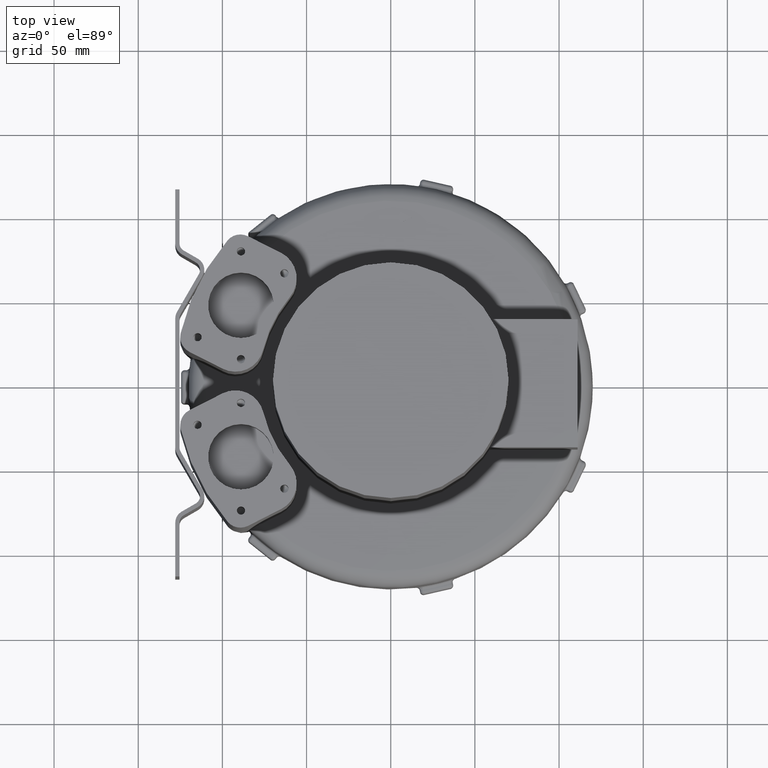
[diagram: clean part render]
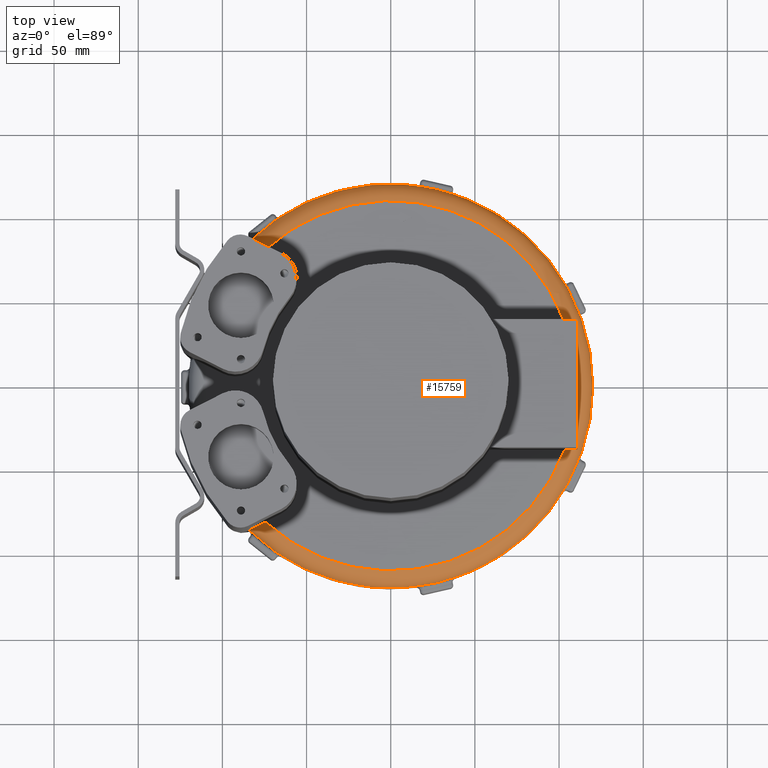
[diagram: same view with one face highlighted and labeled with its STEP entity id]
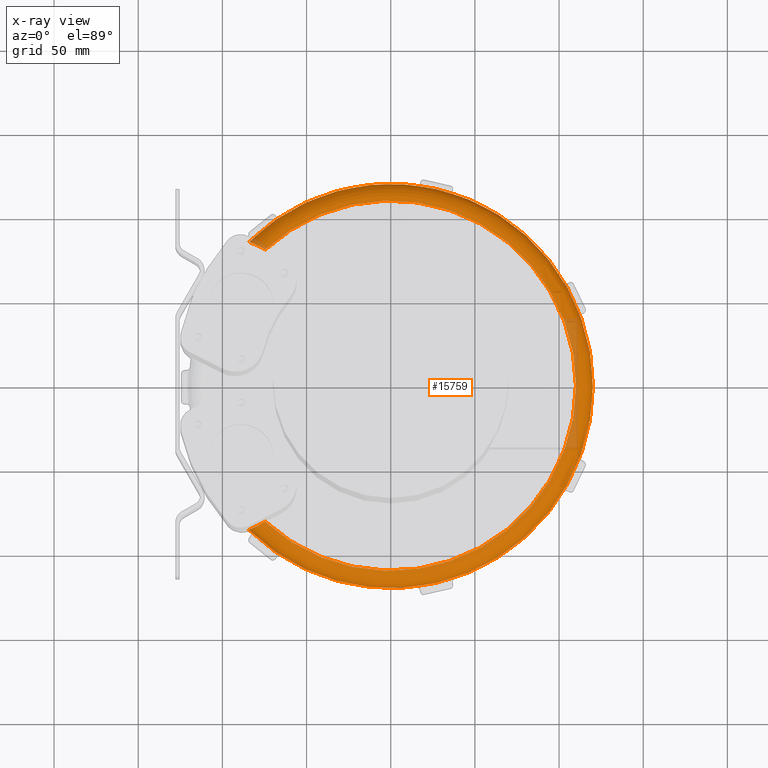
[diagram: x-ray of the same camera — body ghosted, the highlighted face saturated]
A machine part, top view. The second image highlights one B-rep face of the part: STEP entity #15759.
The next image is the same camera in x-ray: the body ghosted, the highlighted face saturated — about 5% of this face is hidden behind the body in this view.
In plain terms, the highlighted toroidal blend (fillet) surface has major radius 110 mm and minor (blend) radius 10 mm.
Its self-contained STEP definition (entity closure, byte-faithful):
#1989=CARTESIAN_POINT('',(-84.056348621555884,85.64187209777387,-12.0));
#1990=VERTEX_POINT('',#1989);
#1997=CARTESIAN_POINT('',(-84.056348621555884,-85.64187209777387,-12.0));
#1998=VERTEX_POINT('',#1997);
#1999=CARTESIAN_POINT('',(0.0,0.0,-12.0));
#2000=DIRECTION('',(0.0,0.0,1.0));
#2001=DIRECTION('',(0.0,-1.0,0.0));
#2002=AXIS2_PLACEMENT_3D('',#1999,#2000,#2001);
#2003=CIRCLE('',#2002,120.0);
#2004=EDGE_CURVE('',#1998,#1990,#2003,.T.);
#14742=CARTESIAN_POINT('',(-74.584446208058239,-80.852707956117754,-2.0));
#14743=VERTEX_POINT('',#14742);
#14744=CARTESIAN_POINT('',(-74.584446208058253,-80.852707956117769,-1.999999999999998));
#14745=CARTESIAN_POINT('',(-75.182824698426771,-81.155258878214212,-1.999999999999998));
#14746=CARTESIAN_POINT('',(-75.836788670192803,-81.485914818994758,-2.063004028082554));
#14747=CARTESIAN_POINT('',(-77.11930183458324,-82.134376531327007,-2.337062824542517));
#14748=CARTESIAN_POINT('',(-77.747827445269195,-82.452170379426661,-2.54825614375461));
#14749=CARTESIAN_POINT('',(-78.838940430527941,-83.003856720287828,-3.037546050059624));
#14750=CARTESIAN_POINT('',(-79.404046136288358,-83.289584324323997,-3.356594996681943));
#14751=CARTESIAN_POINT('',(-80.462437252034874,-83.824725899701434,-4.119126121453566));
#14752=CARTESIAN_POINT('',(-80.955614536185692,-84.074085200676592,-4.562796728977393));
#14753=CARTESIAN_POINT('',(-81.770012789992137,-84.485859598668611,-5.44508755913024));
#14754=CARTESIAN_POINT('',(-82.169117494998318,-84.687654112435794,-5.961583213250005));
#14755=CARTESIAN_POINT('',(-82.85937203757797,-85.03665921823449,-7.077956322778642));
#14756=CARTESIAN_POINT('',(-83.150379616443246,-85.183797881705658,-7.677944215057968));
#14757=CARTESIAN_POINT('',(-83.581223289768815,-85.401640188443309,-8.807806320031816));
#14758=CARTESIAN_POINT('',(-83.763424068693197,-85.493764177787114,-9.439857938737159));
#14759=CARTESIAN_POINT('',(-84.001019488340702,-85.613896693339214,-10.733073785955929));
#14760=CARTESIAN_POINT('',(-84.056348621555884,-85.64187209777387,-11.39425312554436));
#14761=CARTESIAN_POINT('',(-84.056348621555884,-85.64187209777387,-12.0));
#14762=B_SPLINE_CURVE_WITH_KNOTS('',3,(#14744,#14745,#14746,#14747,#14748,#14749,#14750,#14751,#14752,#14753,#14754,#14755,#14756,#14757,#14758,#14759,#14760,#14761),.UNSPECIFIED.,.F.,.U.,(4,2,2,2,2,2,2,2,4),(-1.527366417418427,-1.326211131537741,-1.125055845657053,-0.931133799875384,-0.737211754093715,-0.55032993938355,-0.363448124673385,-0.181724062336692,0.0),.UNSPECIFIED.);
#14763=EDGE_CURVE('',#14743,#1998,#14762,.T.);
#14830=CARTESIAN_POINT('',(-74.584446208058239,80.852707956117754,-2.0));
#14831=VERTEX_POINT('',#14830);
#14838=CARTESIAN_POINT('',(-84.056348621555884,85.64187209777387,-12.0));
#14839=CARTESIAN_POINT('',(-84.056348621555884,85.64187209777387,-11.394253125544358));
#14840=CARTESIAN_POINT('',(-84.001019488340702,85.613896693339214,-10.733073785955927));
#14841=CARTESIAN_POINT('',(-83.763424068693197,85.493764177787114,-9.439857938737152));
#14842=CARTESIAN_POINT('',(-83.581223289768786,85.401640188443309,-8.807806320031816));
#14843=CARTESIAN_POINT('',(-83.150379616443246,85.183797881705658,-7.677944215057968));
#14844=CARTESIAN_POINT('',(-82.85937203757797,85.03665921823449,-7.077956322778642));
#14845=CARTESIAN_POINT('',(-82.169117494998318,84.687654112435794,-5.961583213250005));
#14846=CARTESIAN_POINT('',(-81.770012789992137,84.485859598668611,-5.44508755913024));
#14847=CARTESIAN_POINT('',(-80.955614536185692,84.074085200676592,-4.562796728977392));
#14848=CARTESIAN_POINT('',(-80.462437252034874,83.824725899701434,-4.11912612145357));
#14849=CARTESIAN_POINT('',(-79.404046136288372,83.289584324323997,-3.356594996681951));
#14850=CARTESIAN_POINT('',(-78.838940430527941,83.003856720287828,-3.037546050059623));
#14851=CARTESIAN_POINT('',(-77.747827445269209,82.452170379426661,-2.54825614375461));
#14852=CARTESIAN_POINT('',(-77.119301834583226,82.134376531327007,-2.337062824542516));
#14853=CARTESIAN_POINT('',(-75.836788670192789,81.485914818994758,-2.063004028082554));
#14854=CARTESIAN_POINT('',(-75.182824698426757,81.155258878214212,-1.999999999999999));
#14855=CARTESIAN_POINT('',(-74.584446208058239,80.852707956117769,-1.999999999999999));
#14856=B_SPLINE_CURVE_WITH_KNOTS('',3,(#14838,#14839,#14840,#14841,#14842,#14843,#14844,#14845,#14846,#14847,#14848,#14849,#14850,#14851,#14852,#14853,#14854,#14855),.UNSPECIFIED.,.F.,.U.,(4,2,2,2,2,2,2,2,4),(0.0,0.181724062336693,0.363448124673385,0.55032993938355,0.737211754093715,0.931133799875384,1.125055845657053,1.32621113153774,1.527366417418427),.UNSPECIFIED.);
#14857=EDGE_CURVE('',#1990,#14831,#14856,.T.);
#15742=CARTESIAN_POINT('',(0.0,0.0,-12.0));
#15743=DIRECTION('',(0.0,0.0,1.0));
#15744=DIRECTION('',(0.0,-1.0,0.0));
#15745=AXIS2_PLACEMENT_3D('',#15742,#15743,#15744);
#15746=TOROIDAL_SURFACE('',#15745,110.0,10.0);
#15747=ORIENTED_EDGE('',*,*,#14763,.T.);
#15748=ORIENTED_EDGE('',*,*,#2004,.T.);
#15749=ORIENTED_EDGE('',*,*,#14857,.T.);
#15750=CARTESIAN_POINT('',(0.0,0.0,-2.0));
#15751=DIRECTION('',(0.0,0.0,-1.0));
#15752=DIRECTION('',(0.0,-1.0,0.0));
#15753=AXIS2_PLACEMENT_3D('',#15750,#15751,#15752);
#15754=CIRCLE('',#15753,110.0);
#15755=EDGE_CURVE('',#14831,#14743,#15754,.T.);
#15756=ORIENTED_EDGE('',*,*,#15755,.T.);
#15757=EDGE_LOOP('',(#15747,#15748,#15749,#15756));
#15758=FACE_OUTER_BOUND('',#15757,.T.);
#15759=ADVANCED_FACE('',(#15758),#15746,.T.);